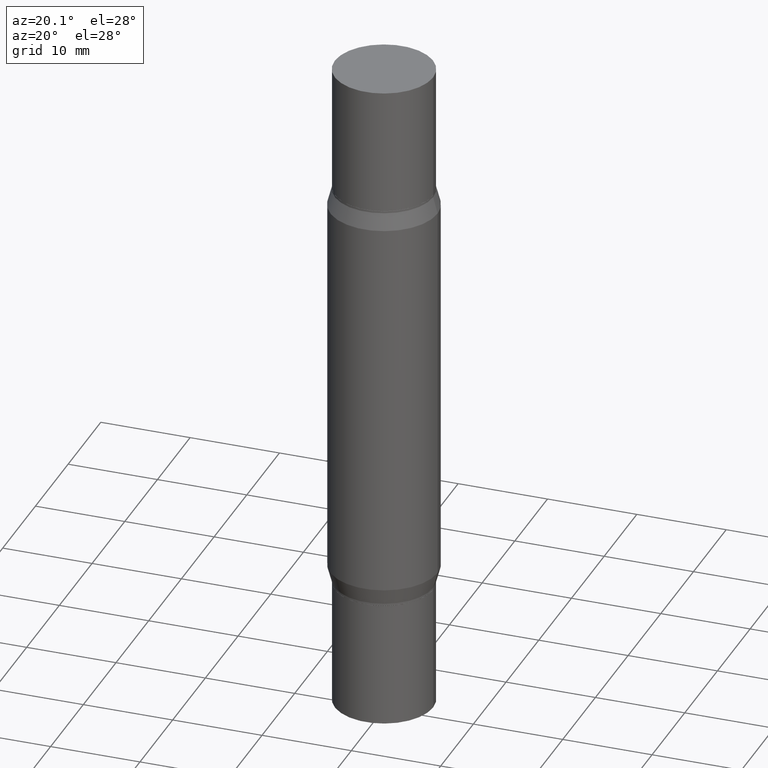
[diagram: clean part render]
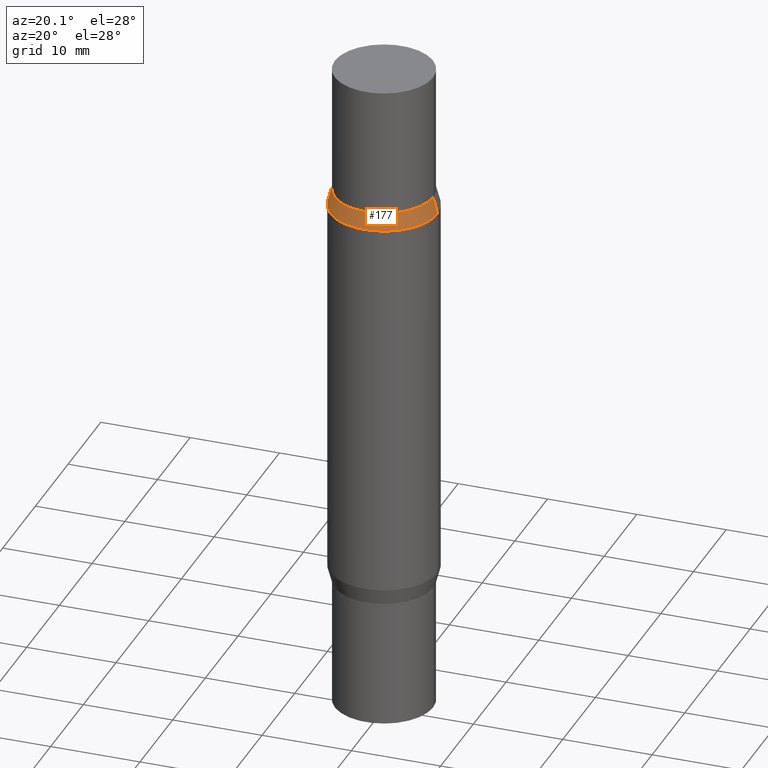
[diagram: same view with one face highlighted and labeled with its STEP entity id]
A machine part, auxiliary view. The second image highlights one B-rep face of the part: STEP entity #177.
In plain terms, the highlighted conical surface has half-angle 15 deg.
Its self-contained STEP definition (entity closure, byte-faithful):
#10 = FACE_OUTER_BOUND ( 'NONE', #266, .T. ) ;
#23 = CARTESIAN_POINT ( 'NONE',  ( 0.2361999999999999933, -3.864569632810967459E-15, -0.6345347983687280591 ) ) ;
#33 = CARTESIAN_POINT ( 'NONE',  ( 5.848583196872371682E-29, -1.959123025759598129E-15, -0.5611999999999994770 ) ) ;
#62 = CONICAL_SURFACE ( 'NONE', #152, 0.2165499999999999647, 0.2617993877991491303 ) ;
#94 = CARTESIAN_POINT ( 'NONE',  ( 5.848583196872371682E-29, -1.959123025759598129E-15, -0.5611999999999994770 ) ) ;
#97 = VERTEX_POINT ( 'NONE', #387 ) ;
#100 = CIRCLE ( 'NONE', #600, 0.2165499999999999647 ) ;
#152 = AXIS2_PLACEMENT_3D ( 'NONE', #94, #323, #546 ) ;
#158 = EDGE_CURVE ( 'NONE', #505, #570, #892, .T. ) ;
#177 = ADVANCED_FACE ( 'NONE', ( #10 ), #62, .T. ) ;
#203 = ORIENTED_EDGE ( 'NONE', *, *, #359, .F. ) ;
#214 = CARTESIAN_POINT ( 'NONE',  ( 5.669245235053768865E-29, -2.215193848341470539E-15, -0.6345347983687280591 ) ) ;
#266 = EDGE_LOOP ( 'NONE', ( #203, #458, #794, #829 ) ) ;
#303 = VERTEX_POINT ( 'NONE', #807 ) ;
#323 = DIRECTION ( 'NONE',  ( -2.445468806185136597E-29, -3.491805094961124077E-15, -1.000000000000000000 ) ) ;
#324 = LINE ( 'NONE', #624, #668 ) ;
#325 = DIRECTION ( 'NONE',  ( -0.2588190451025204619, -1.597197180879721229E-15, -0.9659258262890684232 ) ) ;
#335 = DIRECTION ( 'NONE',  ( 0.2588190451025204619, -5.180148453816000891E-15, -0.9659258262890684232 ) ) ;
#339 = CARTESIAN_POINT ( 'NONE',  ( -0.2361999999999999933, -5.947442212678356578E-16, -0.6345347983687280591 ) ) ;
#359 = EDGE_CURVE ( 'NONE', #97, #303, #100, .T. ) ;
#387 = CARTESIAN_POINT ( 'NONE',  ( -0.2165499999999999647, -4.568961101411077897E-16, -0.5611999999999994770 ) ) ;
#404 = CARTESIAN_POINT ( 'NONE',  ( -0.2165499999999999647, -4.734821843421732845E-16, -0.5611999999999994770 ) ) ;
#458 = ORIENTED_EDGE ( 'NONE', *, *, #903, .T. ) ;
#489 = EDGE_CURVE ( 'NONE', #303, #570, #324, .T. ) ;
#505 = VERTEX_POINT ( 'NONE', #339 ) ;
#546 = DIRECTION ( 'NONE',  ( 1.000000000000000000, -6.982962677686265922E-15, 0.000000000000000000 ) ) ;
#570 = VERTEX_POINT ( 'NONE', #23 ) ;
#600 = AXIS2_PLACEMENT_3D ( 'NONE', #33, #640, #866 ) ;
#603 = AXIS2_PLACEMENT_3D ( 'NONE', #214, #909, #702 ) ;
#624 = CARTESIAN_POINT ( 'NONE',  ( 0.2165499999999999647, -3.471283593612558952E-15, -0.5611999999999994770 ) ) ;
#640 = DIRECTION ( 'NONE',  ( 2.445468806185136597E-29, 3.491805094961124077E-15, 1.000000000000000000 ) ) ;
#668 = VECTOR ( 'NONE', #335, 39.37007874015748854 ) ;
#702 = DIRECTION ( 'NONE',  ( 1.000000000000000000, -6.982962677686266711E-15, 0.000000000000000000 ) ) ;
#794 = ORIENTED_EDGE ( 'NONE', *, *, #158, .T. ) ;
#805 = VECTOR ( 'NONE', #325, 39.37007874015748854 ) ;
#807 = CARTESIAN_POINT ( 'NONE',  ( 0.2165499999999999647, -3.471283593612558952E-15, -0.5611999999999994770 ) ) ;
#829 = ORIENTED_EDGE ( 'NONE', *, *, #489, .F. ) ;
#843 = LINE ( 'NONE', #404, #805 ) ;
#866 = DIRECTION ( 'NONE',  ( 1.000000000000000000, -6.982962677686265922E-15, 0.000000000000000000 ) ) ;
#892 = CIRCLE ( 'NONE', #603, 0.2361999999999999933 ) ;
#903 = EDGE_CURVE ( 'NONE', #97, #505, #843, .T. ) ;
#909 = DIRECTION ( 'NONE',  ( 2.445468806185136597E-29, 3.491805094961124077E-15, 1.000000000000000000 ) ) ;